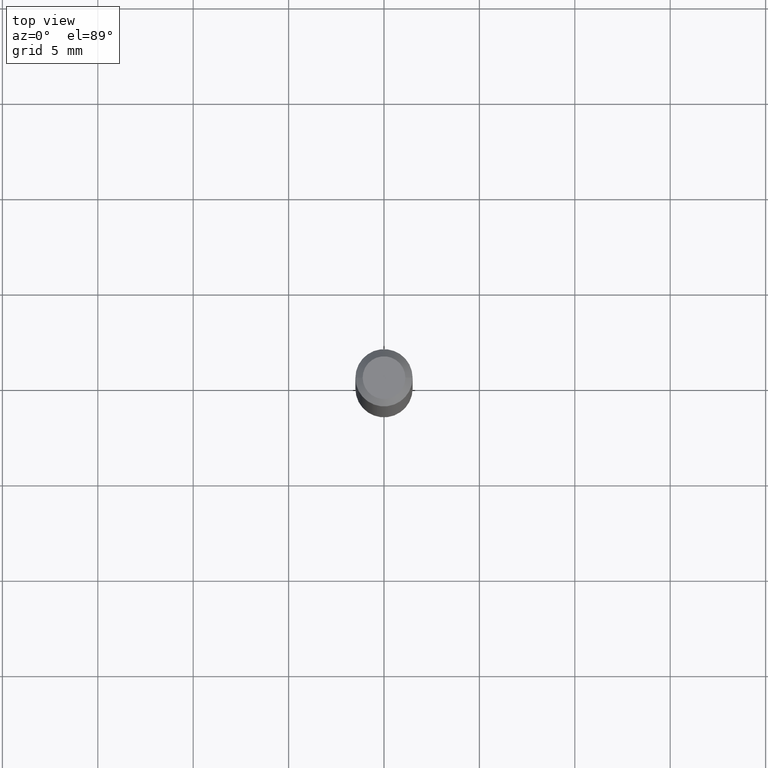
[diagram: clean part render]
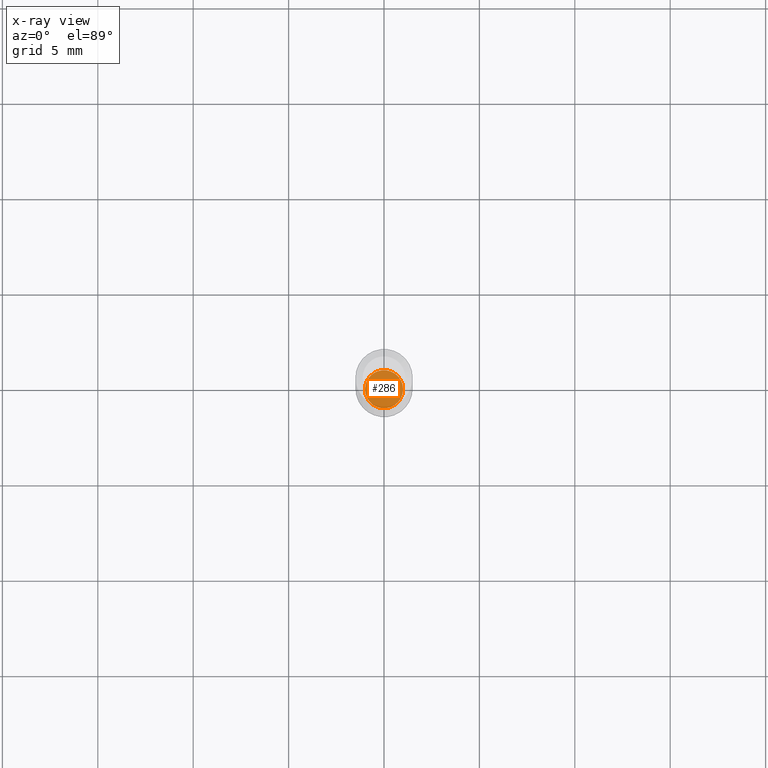
[diagram: x-ray — body ghosted, one internal face saturated and labeled with its STEP entity id]
A machine part, top view, then the same camera in x-ray: the body is ghosted and one INTERNAL B-rep face — a face not visible from any outside direction — is saturated and labeled: STEP entity #286.
In plain terms, the highlighted planar face has unit normal (0, -0, -1).
Its self-contained STEP definition (entity closure, byte-faithful):
#15 = EDGE_CURVE ( 'NONE', #55, #379, #212, .T. ) ;
#18 = AXIS2_PLACEMENT_3D ( 'NONE', #88, #449, #452 ) ;
#25 = PLANE ( 'NONE',  #403 ) ;
#55 = VERTEX_POINT ( 'NONE', #123 ) ;
#79 = CIRCLE ( 'NONE', #160, 0.03935000000000000303 ) ;
#88 = CARTESIAN_POINT ( 'NONE',  ( 3.379393343267239894E-29, -4.824878062147343257E-15, -1.381900000000000128 ) ) ;
#90 = FACE_OUTER_BOUND ( 'NONE', #407, .T. ) ;
#123 = CARTESIAN_POINT ( 'NONE',  ( -0.03935000000000000303, -4.751451468684432505E-15, -1.381900000000000128 ) ) ;
#152 = ORIENTED_EDGE ( 'NONE', *, *, #267, .T. ) ;
#160 = AXIS2_PLACEMENT_3D ( 'NONE', #174, #320, #466 ) ;
#174 = CARTESIAN_POINT ( 'NONE',  ( 3.379393343267239894E-29, -4.824878062147343257E-15, -1.381900000000000128 ) ) ;
#212 = CIRCLE ( 'NONE', #18, 0.03935000000000000303 ) ;
#237 = CARTESIAN_POINT ( 'NONE',  ( 0.03935000000000000303, -5.099657643514298173E-15, -1.381900000000000128 ) ) ;
#267 = EDGE_CURVE ( 'NONE', #379, #55, #79, .T. ) ;
#286 = ADVANCED_FACE ( 'NONE', ( #90 ), #25, .F. ) ;
#304 = DIRECTION ( 'NONE',  ( 2.438088387897960049E-29, -3.491481338843145188E-15, -1.000000000000000000 ) ) ;
#310 = CARTESIAN_POINT ( 'NONE',  ( 2.747795813669883942E-16, 0.03934999999999518050, -1.381900000000000350 ) ) ;
#320 = DIRECTION ( 'NONE',  ( -2.445468806185136597E-29, 3.491481338843145583E-15, 1.000000000000000000 ) ) ;
#379 = VERTEX_POINT ( 'NONE', #237 ) ;
#403 = AXIS2_PLACEMENT_3D ( 'NONE', #310, #304, #453 ) ;
#407 = EDGE_LOOP ( 'NONE', ( #152, #457 ) ) ;
#449 = DIRECTION ( 'NONE',  ( -2.445468806185136597E-29, 3.491481338843145583E-15, 1.000000000000000000 ) ) ;
#452 = DIRECTION ( 'NONE',  ( 1.000000000000000000, -6.982962677686269077E-15, 0.000000000000000000 ) ) ;
#453 = DIRECTION ( 'NONE',  ( -1.000000000000000000, 6.982962677686265922E-15, -4.876176775795935793E-29 ) ) ;
#457 = ORIENTED_EDGE ( 'NONE', *, *, #15, .T. ) ;
#466 = DIRECTION ( 'NONE',  ( 1.000000000000000000, -6.982962677686269077E-15, 0.000000000000000000 ) ) ;